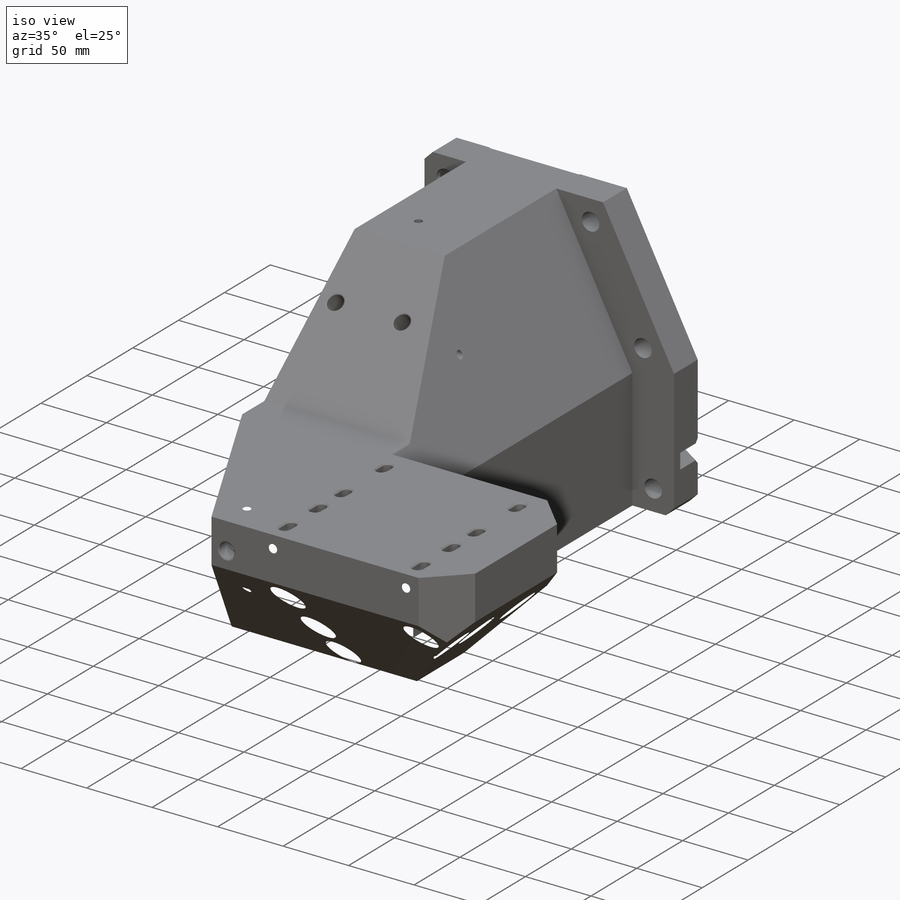
[diagram: iso view]
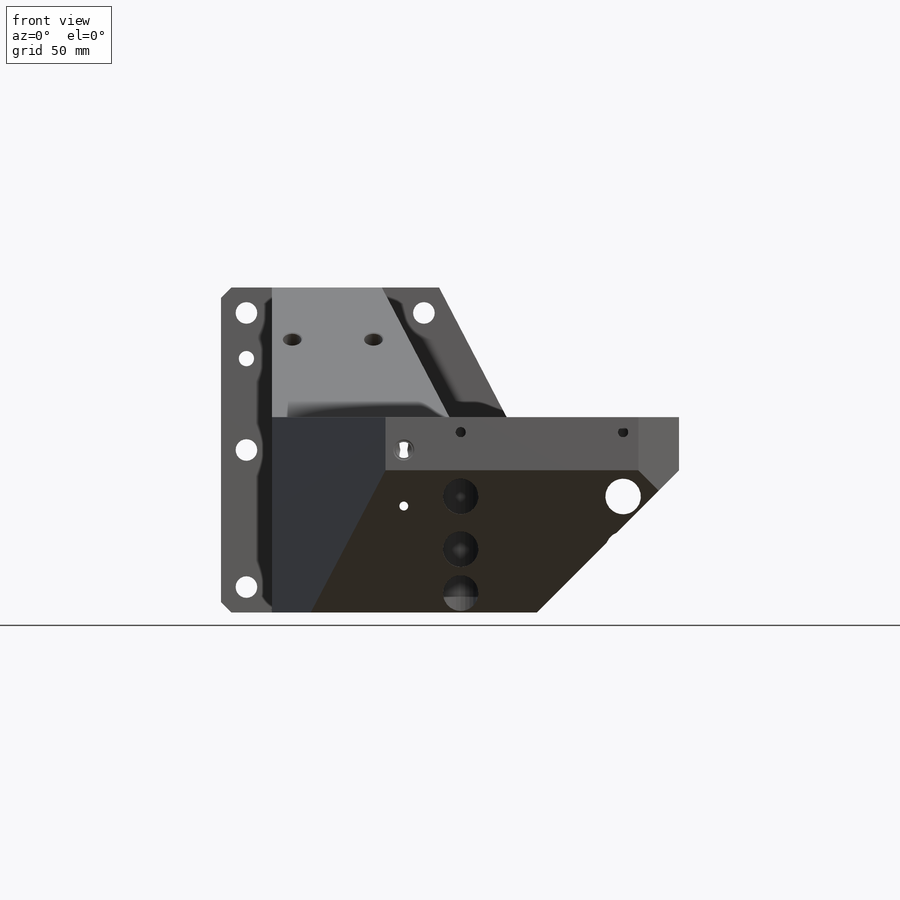
[diagram: front view]
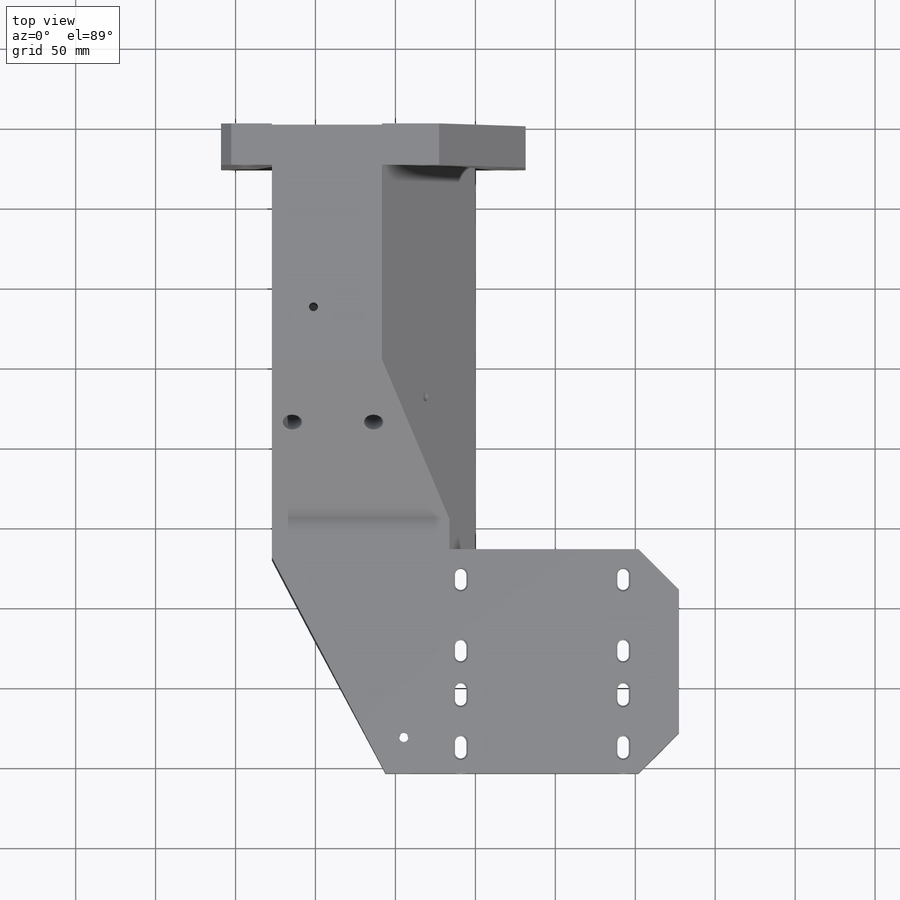
[diagram: top view]
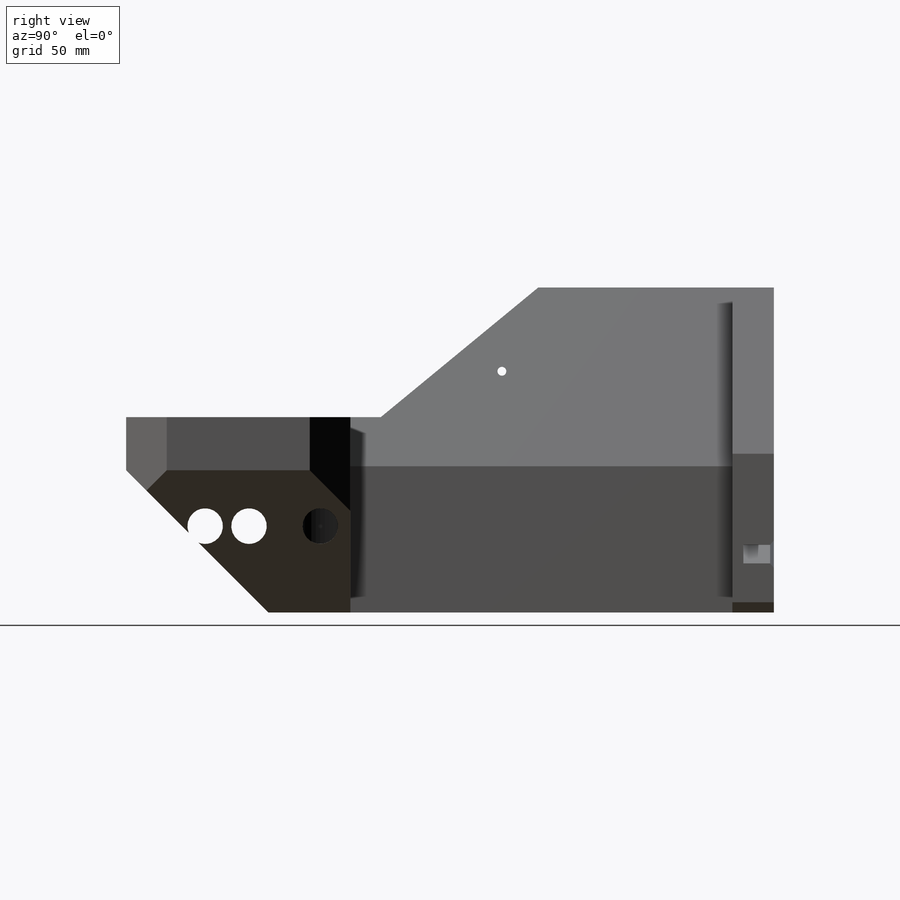
[diagram: right view]
SOLIDWORKS PART (.sldprt)
format: sldprt  version: not decoded by parser v0  size: 1,867,776 bytes
history: native  units: mm
features: sketch x50, cut_extrude x17, extrude x10, hole x10, plane x7, chamfer x4, material x1, pattern_linear x1 (+11 scaffold rows collapsed)
feature tree (111):
  scaffold x11  (default folders/planes/origin — collapsed)
  material  "6061-T6 Al"
  plane  "XY"
  plane  "XZ"
  plane  "YZ"
  sketch  "Sketch1"  dims[D1=254.635mm D2=101.6mm]
  extrude  "Extrude1"  Depth=341.0712mm
  sketch  "Sketch5"  dims[c1.D1=127.0mm c1.D2=278.638mm c2.D2=90.0deg c2.D3=69.85mm]
  cut_extrude  "Cut-Extrude2"  [1 undecoded]
  sketch  "Sketch2"  dims[D1=0.0mm]
  extrude  "Extrude2"  Depth=25.908mm
  sketch  "Sketch26"  dims[c1.D1=~6.644809mm c1.D2=7.1374mm c2.D1=7.1374mm c2.D3=3.5687mm c2.D4=3.5687mm c3.D1=3.5687mm c3.D6=3.5687mm c3.D7=3.5687mm c4.D1=22.225mm c4.D3=154.94mm c5.D1=9.525mm c5.D3=6.35mm c5.D4=101.6mm c6.D1=85.725mm c6.D5=22.225mm c6.D2=283.6672mm c7.D5=328.2442mm c7.D7=6.35mm]
  cut_extrude  "Cut-Extrude15"  Depth=-1 ID=-1
  sketch  "Sketch36"  dims[c1.D1=170.18mm c1.D2=176.53mm c1.D3=176.53mm c2.D2=176.53mm c2.D1=176.53mm]
  cut_extrude  "Cut-Extrude19"  Depth=6.35mm
  sketch  "Sketch39"  dims[c1.D4=12.7mm c1.D1=9.525mm c1.D2=9.525mm c1.D3=9.525mm c1.D5=79.375mm c2.D1=12.7mm c2.D5=25.4mm c3.D1=12.7mm]
  cut_extrude  "Cut-Extrude22"  Depth=12.7mm
  sketch  "Sketch43"  dims[D1=22.225mm]
  plane  "Plane1"
  sketch  "Sketch31"  dims[c1.D1=~139.034301mm c2.D1=35.0deg c2.D2=88.9mm c3.D1=45.0deg c3.D2=71.12mm]
  cut_extrude  "Cut-Extrude23"  [1 undecoded]
  sketch  "Sketch46"
  extrude  "Extrude7"  Depth=101.6mm
  sketch  "Sketch47"  dims[c1.D1=101.6mm c2.D1=45.0deg c2.D2=22.225mm]
  extrude  "Extrude8"  [1 undecoded]
  plane  "Plane3"  Offset=64.8462mm
  sketch  "Sketch49"  dims[c1.D1=~193.939233mm c2.D1=62.5deg c2.D2=152.4mm c2.D3=31.4325mm c2.D4=~89.848364mm c2.D5=~171.871165mm c3.D4=172.72mm c3.D5=~188.572872mm c4.D5=62.5deg c4.D1=12.7mm]
  cut_extrude  "Cut-Extrude26"  Depth=101.6mm
  sketch  "Sketch50"  dims[D1=0.0mm]
  cut_extrude  "Cut-Extrude27"  Depth=79.375mm
  sketch  "Sketch51"  dims[D1=0.0mm]
  cut_extrude  "Cut-Extrude28"  [1 undecoded]
  sketch  "Sketch52"  dims[D1=31.75mm]
  cut_extrude  "Cut-Extrude30"  [1 undecoded]
  sketch  "Sketch54"  dims[D1=0.0mm]
  extrude  "Extrude9"  [1 undecoded]
  sketch  "Sketch58"  dims[D1=0.0mm]
  cut_extrude  "Cut-Extrude34"  Depth=3.175mm
  sketch  "Sketch59"  dims[D1=0.0mm]
  extrude  "Extrude10"  Depth=25.4mm
  sketch  "Symmetric Plane Sketch"
  plane  "Vertical Center"
  plane  "Horizontal Center"
  sketch  "Sketch63"  dims[D2=~100.578869mm D1=0.0mm]
  extrude  "Extrude11"  Depth=26.924mm
  sketch  "Sketch64"  dims[c1.D1=~38.865564mm c1.D2=183.515mm c2.D1=38.1mm]
  extrude  "Extrude12"  Depth=64.008mm
  sketch  "Sketch67"  dims[c1.D3=~19.84375mm c1.D1=7.1374mm c1.D2=7.1374mm c2.D3=355.6762mm]
  cut_extrude  "Extrude13"  [1 undecoded]
  pattern_linear  "LPattern2"  Count1=2 Count2=2 Spacing1=101.6mm Spacing2=33.02mm
  sketch  "Sketch69"  dims[D1=71.12mm]
  extrude  "Extrude17"  [1 undecoded]
  sketch  "Sketch70"  dims[D1=88.9mm]
  cut_extrude  "Extrude18"  [1 undecoded]
  sketch  "Sketch71"  dims[D1=~127.486051mm]
  extrude  "Extrude19"  [1 undecoded]
  sketch  "Sketch72"  dims[c1.D1=88.9mm c2.D1=45.0deg]
  cut_extrude  "Extrude20"  [1 undecoded]
  sketch  "Sketch75"  dims[D1=0.0mm]
  cut_extrude  "Extrude21"  Depth=19.05mm
  chamfer  "Chamfer3"  Distance=25.4mm Angle=45deg
  hole  "Tapped Hole for 3/8-16 Helicoil2"  Diameter=10.0838mm Depth=29.1338mm
  sketch  "Sketch81"  dims[D1=50.8mm D2=12.7mm D3=50.8mm D4=50.8mm]
  sketch  "Sketch80"  dims[hole-wizard template sketch: 27 standard entries collapsed; hole parameters kept: c8.Tap Drill Depth=29.1338mm c8.Thread Major Dia.=~11.68908mm c8.Thread Depth=22.86mm c8.Near C'Sink Dia.=13.208mm c8.D6=~4.399409mm c8.Near C'Sink Angle=120.0deg c8.D7=~14.816244mm c8.Drill Angle=118.0deg]
  hole  "Tapped Hole for 3/8-16 Helicoil1"  Diameter=10.0838mm Depth=29.1338mm
  sketch  "Sketch83"  dims[D1=50.8mm D2=152.4mm D3=152.4mm D4=21.463mm D5=50.8mm D6=88.9mm D7=21.463mm]
  sketch  "Sketch82"  dims[hole-wizard template sketch: 27 standard entries collapsed; hole parameters kept: c8.Tap Drill Depth=29.1338mm c8.Thread Major Dia.=~11.68908mm c8.Thread Depth=22.86mm c8.Near C'Sink Dia.=13.208mm c8.D6=~4.399409mm c8.Near C'Sink Angle=120.0deg c8.D7=~14.816244mm c8.Drill Angle=118.0deg]
  hole  "7/32 (0.21875) Diameter Hole1"  Diameter=5.55625mm Depth=254.635mm
  sketch  "Sketch87"  dims[D1=25.9969mm D2=~20.637063mm]
  sketch  "Sketch86"  dims[hole-wizard template sketch: 60 standard entries collapsed; hole parameters kept: c18.Thru Hole Depth=254.635mm]
  hole  "7/32 (0.21875) Diameter Hole3"  Diameter=5.55625mm Depth=72.262mm
  sketch  "Sketch95"  dims[D1=88.9mm D2=25.9969mm]
  sketch  "Sketch94"  dims[hole-wizard template sketch: 47 standard entries collapsed; hole parameters kept: c15.Hole Depth=72.262mm c15.D3=~14.816244mm c15.Drill Angle=180.0deg]
  hole  "7/32 (0.21875) Diameter Hole4"  Diameter=5.55625mm Depth=72.262mm
  sketch  "Sketch97"  dims[D1=25.9969mm D2=152.4mm]
  sketch  "Sketch96"  dims[hole-wizard template sketch: 47 standard entries collapsed; hole parameters kept: c15.Hole Depth=72.262mm c15.D3=~14.816244mm c15.Drill Angle=180.0deg]
  hole  "Tapped Hole for 3/8-16 Helicoil3"  Diameter=10.0838mm Depth=22.352mm
  sketch  "Sketch103"  dims[D1=114.3mm D2=101.6mm]
  sketch  "Sketch102"  dims[hole-wizard template sketch: 27 standard entries collapsed; hole parameters kept: c8.Tap Drill Depth=22.352mm c8.Thread Major Dia.=~11.68908mm c8.Thread Depth=11.176mm c8.Near C'Sink Dia.=13.208mm c8.D6=~4.399409mm c8.Near C'Sink Angle=120.0deg c8.D7=~14.816244mm c8.Drill Angle=118.0deg]
  chamfer  "Chamfer5"  Distance=1.016mm Angle=45deg
  sketch  "BOTTOM HOLE PAT SKETCH"  dims[c1.D14=9.525mm c1.D1=0.0mm c1.D2=15.875mm c1.D3=51.308mm c1.D4=101.6mm c1.D5=158.75mm c1.D6=110.7948mm c1.D7=177.8mm c1.D8=187.325mm c1.D9=0.0mm c1.D10=15.875mm c1.D11=~116.908292mm c1.D12=~152.974225mm c1.D13=~163.693938mm c2.D14=~174.526748mm c2.D7=0.0mm c2.D9=15.875mm c2.D10=126.873mm c2.D11=166.878mm c2.D12=169.3164mm c2.D13=174.625mm]
  hole  "17/32 (0.53125) Diameter Hole1"  Diameter=13.49375mm Depth=25.908mm
  sketch  "Sketch108"
  sketch  "Sketch107"  dims[hole-wizard template sketch: 54 standard entries collapsed; hole parameters kept: c17.Thru Hole Dia.=~13.49375mm c17.Thru Hole Depth=25.908mm c17.Far C'Sink Dia.=19.05mm c17.D4=~2.963249mm c17.Far C'Sink Angle=90.0deg]
  hole  "3/8 (0.375) Diameter Hole2"  Diameter=9.54278mm Depth=405.0792mm
  sketch  "Sketch110"
  sketch  "Sketch109"  dims[hole-wizard template sketch: 55 standard entries collapsed; hole parameters kept: c17.Thru Hole Depth=405.0792mm c17.Near C'Sink Dia.=14.224mm c17.D4=~3.666174mm c17.Near C'Sink Angle=90.0deg]
  sketch  "Sketch111"  dims[c1.D1=~26.268683mm c2.D1=125.0deg c2.D2=~31.946245mm]
  cut_extrude  "Extrude23"  Depth=19.05mm
  chamfer  "Chamfer6"  Distance=2.286mm Angle=45deg
  sketch  "Sketch112"  dims[D1=6.35mm]
  cut_extrude  "Extrude24"  Depth=0.762mm
  chamfer  "Chamfer2"  Distance=6.35mm Angle=45deg
  sketch  "Sketch113"  dims[D1=22.225mm]
  cut_extrude  "Extrude25"  Depth=99.06mm
  hole  "1/4 (0.25) Diameter Hole1"  Diameter=6.35mm Depth=116.84mm
  sketch  "Sketch115"  dims[D1=9.525mm D2=251.46mm D3=149.86mm]
  sketch  "Sketch114"  dims[hole-wizard template sketch: 47 standard entries collapsed; hole parameters kept: c15.Hole Depth=116.84mm c15.D3=~14.816244mm c15.Drill Angle=118.0deg]
  hole  "7/32 (0.21875) Diameter Hole5"  Diameter=5.55625mm Depth=122.17405mm
  sketch  "Sketch117"
  sketch  "Sketch118"  dims[hole-wizard template sketch: 60 standard entries collapsed; hole parameters kept: c18.Thru Hole Depth=~122.17405mm]
decode coverage: 76 of 92 modeling features carry decoded parameters
note: ~ marks probable driven/reference dimensions
note: 11 parameter values undecoded
summary: no parameter record found for 11 features; Diameter pulled from absorbed wizard sketch
note: suppression state not decoded; provenance and decode notes live in map.json
